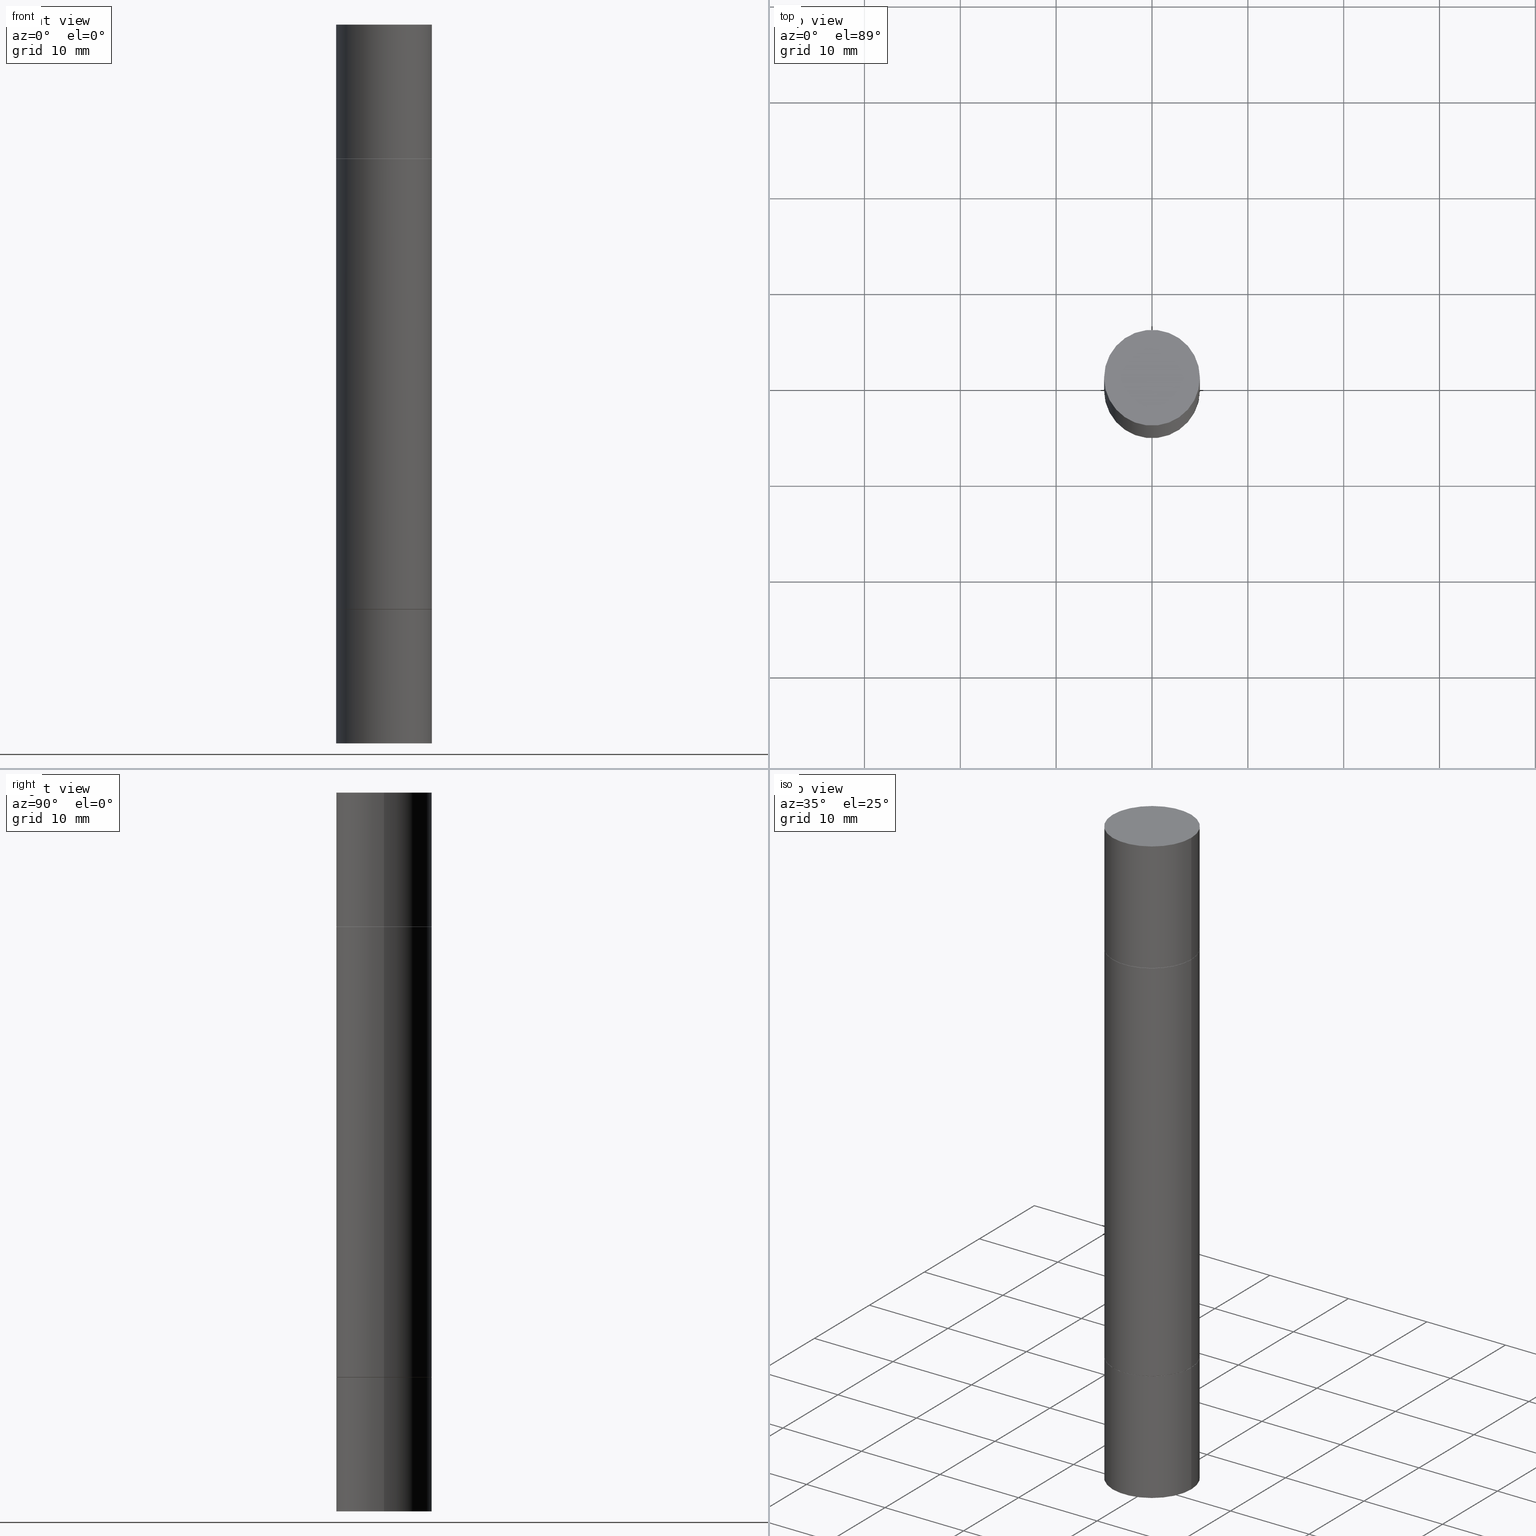
[diagram: canonical four-view strip — front | top / right | iso, engineering-drawing reading convention]
A machine part, canonical four-view strip (front | top / right | iso — engineering-drawing reading convention). The complete STEP part file that produces these views, byte-faithful:
ISO-10303-21;
HEADER;
FILE_DESCRIPTION (( 'STEP AP203' ),
    '1' );
FILE_NAME ('48918.STEP',
    '2024-03-04T15:48:40',
    ( '' ),
    ( '' ),
    'SwSTEP 2.0',
    'SolidWorks 2023',
    '' );
FILE_SCHEMA (( 'CONFIG_CONTROL_DESIGN' ));
ENDSEC;

DATA;
#1 = DIRECTION ( 'NONE',  ( 1.000000000000000000, -6.982962677686265922E-15, 0.000000000000000000 ) ) ;
#2 = VERTEX_POINT ( 'NONE', #113 ) ;
#3 = ORIENTED_EDGE ( 'NONE', *, *, #40, .T. ) ;
#4 = DIRECTION ( 'NONE',  ( -0.000000000000000000, -3.492185875197449130E-15, -1.000000000000000000 ) ) ;
#5 = ORIENTED_EDGE ( 'NONE', *, *, #536, .T. ) ;
#6 = EDGE_LOOP ( 'NONE', ( #625, #351 ) ) ;
#7 = CARTESIAN_POINT ( 'NONE',  ( 5.873037884934223228E-29, -8.385141583365697263E-15, -2.401599999999999735 ) ) ;
#8 = ORIENTED_EDGE ( 'NONE', *, *, #433, .F. ) ;
#9 = CIRCLE ( 'NONE', #400, 0.1958499999999999963 ) ;
#10 = AXIS2_PLACEMENT_3D ( 'NONE', #120, #546, #68 ) ;
#11 = EDGE_CURVE ( 'NONE', #594, #632, #358, .T. ) ;
#12 = CARTESIAN_POINT ( 'NONE',  ( 1.374596203102613789E-15, 0.1968500000000000250, -5.463695987328526437E-16 ) ) ;
#13 = EDGE_LOOP ( 'NONE', ( #312, #315 ) ) ;
#14 = EDGE_CURVE ( 'NONE', #471, #207, #60, .T. ) ;
#15 = DIRECTION ( 'NONE',  ( 0.000000000000000000, 0.000000000000000000, 1.000000000000000000 ) ) ;
#16 = CARTESIAN_POINT ( 'NONE',  ( 1.374596203102600181E-15, 0.1968499999999980543, -0.5512000000000001343 ) ) ;
#17 = PLANE ( 'NONE',  #262 ) ;
#18 = APPROVAL_DATE_TIME ( #551, #177 ) ;
#19 = DIRECTION ( 'NONE',  ( -2.445468806185136597E-29, 3.491481338843145583E-15, 1.000000000000000000 ) ) ;
#20 = ORIENTED_EDGE ( 'NONE', *, *, #557, .F. ) ;
#21 = EDGE_CURVE ( 'NONE', #318, #207, #636, .T. ) ;
#22 = AXIS2_PLACEMENT_3D ( 'NONE', #191, #556, #406 ) ;
#23 = CC_DESIGN_APPROVAL ( #177, ( #568 ) ) ;
#24 = FACE_OUTER_BOUND ( 'NONE', #48, .T. ) ;
#25 = ADVANCED_FACE ( 'NONE', ( #635 ), #343, .T. ) ;
#26 = DIRECTION ( 'NONE',  ( 2.445468806185136597E-29, 3.492890411551752677E-15, 1.000000000000000000 ) ) ;
#27 = CARTESIAN_POINT ( 'NONE',  ( 0.000000000000000000, 0.000000000000000000, 0.000000000000000000 ) ) ;
#28 = CARTESIAN_POINT ( 'NONE',  ( 0.1968500000000000250, -9.759737786468237294E-15, -2.401599999999999735 ) ) ;
#29 = CARTESIAN_POINT ( 'NONE',  ( 0.1968500000000000250, -1.372515848155552113E-15, 5.463695987328526437E-16 ) ) ;
#30 = DIRECTION ( 'NONE',  ( 1.000000000000000000, -6.982962677686268288E-15, 0.000000000000000000 ) ) ;
#31 = AXIS2_PLACEMENT_3D ( 'NONE', #126, #453, #401 ) ;
#32 = ORIENTED_EDGE ( 'NONE', *, *, #158, .T. ) ;
#33 = APPROVAL_STATUS ( 'not_yet_approved' ) ;
#34 = VECTOR ( 'NONE', #273, 39.37007874015748143 ) ;
#35 = CARTESIAN_POINT ( 'NONE',  ( 0.000000000000000000, 0.000000000000000000, 0.000000000000000000 ) ) ;
#36 = DIRECTION ( 'NONE',  ( -2.445468806185136597E-29, -3.492890411551752677E-15, -1.000000000000000000 ) ) ;
#37 = EDGE_LOOP ( 'NONE', ( #522, #547, #172, #438 ) ) ;
#38 = CARTESIAN_POINT ( 'NONE',  ( 1.374596203102613789E-15, 0.1968499999999896999, -2.952800000000000313 ) ) ;
#39 = DIRECTION ( 'NONE',  ( -2.438088387897959769E-29, -3.492890411551753071E-15, -1.000000000000000000 ) ) ;
#40 = EDGE_CURVE ( 'NONE', #230, #390, #435, .T. ) ;
#41 = APPLICATION_PROTOCOL_DEFINITION ( 'international standard', 'config_control_design', 1994, #188 ) ;
#42 = DIRECTION ( 'NONE',  ( -2.445468806185136597E-29, -3.492890411551752677E-15, -1.000000000000000000 ) ) ;
#43 = ADVANCED_FACE ( 'NONE', ( #493 ), #17, .T. ) ;
#44 = CARTESIAN_POINT ( 'NONE',  ( 5.870592416128037625E-29, -1.926693730311889446E-15, -0.5521999999999996911 ) ) ;
#45 = ORIENTED_EDGE ( 'NONE', *, *, #80, .T. ) ;
#46 = DIRECTION ( 'NONE',  ( 1.000000000000000000, -6.982962677686264344E-15, 0.000000000000000000 ) ) ;
#47 = ORIENTED_EDGE ( 'NONE', *, *, #673, .T. ) ;
#48 = EDGE_LOOP ( 'NONE', ( #121, #421 ) ) ;
#49 = CARTESIAN_POINT ( 'NONE',  ( 7.220980290903470182E-29, 2.080354946989631982E-18, 5.463695987328526437E-16 ) ) ;
#50 = AXIS2_PLACEMENT_3D ( 'NONE', #137, #70, #549 ) ;
#51 = ORIENTED_EDGE ( 'NONE', *, *, #334, .F. ) ;
#52 = VECTOR ( 'NONE', #251, 39.37007874015748143 ) ;
#53 = FACE_OUTER_BOUND ( 'NONE', #6, .T. ) ;
#54 = DIRECTION ( 'NONE',  ( 0.000000000000000000, 1.000000000000000000, -4.163344669033678790E-15 ) ) ;
#55 = ORIENTED_EDGE ( 'NONE', *, *, #158, .F. ) ;
#56 = CARTESIAN_POINT ( 'NONE',  ( -0.1968500000000000250, -3.804334017806689102E-15, -2.400599999999999401 ) ) ;
#57 = VERTEX_POINT ( 'NONE', #28 ) ;
#58 = ADVANCED_FACE ( 'NONE', ( #611 ), #512, .F. ) ;
#59 = CARTESIAN_POINT ( 'NONE',  ( 0.1958499999999999963, -9.752754823790552857E-15, -2.401599999999999735 ) ) ;
#60 = LINE ( 'NONE', #326, #477 ) ;
#61 = CIRCLE ( 'NONE', #456, 0.1968500000000000250 ) ;
#62 = EDGE_CURVE ( 'NONE', #2, #230, #510, .T. ) ;
#63 = LOCAL_TIME ( 10, 48, 40.00000000000000000, #451 ) ;
#64 = PRODUCT_DEFINITION_SHAPE ( 'NONE', 'NONE',  #197 ) ;
#65 = CYLINDRICAL_SURFACE ( 'NONE', #185, 0.1968500000000000250 ) ;
#66 = CARTESIAN_POINT ( 'NONE',  ( 5.873037884934223228E-29, -1.923200839900334937E-15, -0.5511999999999992461 ) ) ;
#67 = CC_DESIGN_PERSON_AND_ORGANIZATION_ASSIGNMENT ( #485, #213, ( #229 ) ) ;
#68 = DIRECTION ( 'NONE',  ( 1.000000000000000000, -6.982962677686267499E-15, 0.000000000000000000 ) ) ;
#69 = ORIENTED_EDGE ( 'NONE', *, *, #360, .T. ) ;
#70 = DIRECTION ( 'NONE',  ( -2.445468806185136597E-29, 3.491481338843145583E-15, 1.000000000000000000 ) ) ;
#71 = DIRECTION ( 'NONE',  ( 1.000000000000000000, -6.982962677686268288E-15, 0.000000000000000000 ) ) ;
#72 = AXIS2_PLACEMENT_3D ( 'NONE', #199, #123, #76 ) ;
#73 = VECTOR ( 'NONE', #322, 39.37007874015748143 ) ;
#74 = PERSON_AND_ORGANIZATION ( #146, #530 ) ;
#75 = FACE_OUTER_BOUND ( 'NONE', #327, .T. ) ;
#76 = DIRECTION ( 'NONE',  ( 1.000000000000000000, -6.982962677686267499E-15, 0.000000000000000000 ) ) ;
#77 = CALENDAR_DATE ( 2024, 4, 3 ) ;
#78 = FACE_OUTER_BOUND ( 'NONE', #323, .T. ) ;
#79 = DIRECTION ( 'NONE',  ( 1.000000000000000000, -6.982962677686268288E-15, 0.000000000000000000 ) ) ;
#80 = EDGE_CURVE ( 'NONE', #272, #484, #183, .T. ) ;
#81 = APPROVAL_ROLE ( '' ) ;
#82 = CARTESIAN_POINT ( 'NONE',  ( 5.873037884934223228E-29, -1.923200839900336120E-15, -0.5511999999999995792 ) ) ;
#83 = CARTESIAN_POINT ( 'NONE',  ( 5.870592416128037625E-29, -1.926693730311889446E-15, -0.5521999999999996911 ) ) ;
#84 = CIRCLE ( 'NONE', #444, 0.1968500000000000250 ) ;
#85 = EDGE_LOOP ( 'NONE', ( #496, #367, #413, #539 ) ) ;
#86 = AXIS2_PLACEMENT_3D ( 'NONE', #204, #627, #206 ) ;
#87 = AXIS2_PLACEMENT_3D ( 'NONE', #313, #15, #535 ) ;
#88 = DIRECTION ( 'NONE',  ( -2.445468806185136597E-29, 3.491481338843145583E-15, 1.000000000000000000 ) ) ;
#89 = AXIS2_PLACEMENT_3D ( 'NONE', #550, #407, #79 ) ;
#90 = DIRECTION ( 'NONE',  ( -2.445468806185136597E-29, -3.492890411551752677E-15, -1.000000000000000000 ) ) ;
#91 = ADVANCED_FACE ( 'NONE', ( #463 ), #651, .T. ) ;
#92 = DIRECTION ( 'NONE',  ( -2.445468806185136597E-29, -3.492890411551752677E-15, -1.000000000000000000 ) ) ;
#93 = ADVANCED_FACE ( 'NONE', ( #567 ), #303, .F. ) ;
#94 = CYLINDRICAL_SURFACE ( 'NONE', #105, 0.1968499999999998307 ) ;
#95 = AXIS2_PLACEMENT_3D ( 'NONE', #170, #388, #597 ) ;
#96 = DIRECTION ( 'NONE',  ( 1.000000000000000000, -6.982962677686265922E-15, 9.839502134516470631E-33 ) ) ;
#97 = CC_DESIGN_APPROVAL ( #109, ( #106 ) ) ;
#98 = VERTEX_POINT ( 'NONE', #515 ) ;
#99 = CYLINDRICAL_SURFACE ( 'NONE', #287, 0.1968499999999998307 ) ;
#100 = ORIENTED_EDGE ( 'NONE', *, *, #606, .F. ) ;
#101 = DIRECTION ( 'NONE',  ( 0.7071067811864267805, -7.407546758113824138E-15, -0.7071067811866682540 ) ) ;
#102 = VERTEX_POINT ( 'NONE', #668 ) ;
#103 = AXIS2_PLACEMENT_3D ( 'NONE', #241, #36, #30 ) ;
#104 = DIRECTION ( 'NONE',  ( -2.445468806185136597E-29, -3.492890411551752677E-15, -1.000000000000000000 ) ) ;
#105 = AXIS2_PLACEMENT_3D ( 'NONE', #470, #42, #46 ) ;
#107 = ORIENTED_EDGE ( 'NONE', *, *, #363, .T. ) ;
#106 = PRODUCT_DEFINITION_FORMATION_WITH_SPECIFIED_SOURCE ( 'ANY', '', #229, .NOT_KNOWN. ) ;
#108 = CYLINDRICAL_SURFACE ( 'NONE', #173, 0.1968500000000000250 ) ;
#109 = APPROVAL ( #33, 'UNSPECIFIED' ) ;
#110 = ORIENTED_EDGE ( 'NONE', *, *, #134, .T. ) ;
#111 = EDGE_CURVE ( 'NONE', #270, #390, #386, .T. ) ;
#112 = FACE_OUTER_BOUND ( 'NONE', #13, .T. ) ;
#113 = CARTESIAN_POINT ( 'NONE',  ( -0.1958499999999999963, -5.778885032436711881E-16, -0.5511999999999992461 ) ) ;
#114 = EDGE_LOOP ( 'NONE', ( #624, #370, #3, #110 ) ) ;
#115 = FACE_OUTER_BOUND ( 'NONE', #136, .T. ) ;
#116 = CIRCLE ( 'NONE', #208, 0.1968500000000000250 ) ;
#117 = VERTEX_POINT ( 'NONE', #660 ) ;
#118 = CONICAL_SURFACE ( 'NONE', #184, 0.1958499999999999963, 0.7853981633972775267 ) ;
#119 = PERSON_AND_ORGANIZATION ( #146, #530 ) ;
#120 = CARTESIAN_POINT ( 'NONE',  ( 7.220980290903470182E-29, -1.030964609733603853E-14, -2.952799999999999869 ) ) ;
#121 = ORIENTED_EDGE ( 'NONE', *, *, #416, .T. ) ;
#122 = FACE_OUTER_BOUND ( 'NONE', #223, .T. ) ;
#123 = DIRECTION ( 'NONE',  ( 2.445468806185136597E-29, 3.492890411551752677E-15, 1.000000000000000000 ) ) ;
#124 = PERSON_AND_ORGANIZATION_ROLE ( 'creator' ) ;
#125 = DIRECTION ( 'NONE',  ( 1.000000000000000000, -6.982962677686265922E-15, 4.876176775795935793E-29 ) ) ;
#126 = CARTESIAN_POINT ( 'NONE',  ( 5.870592416128037625E-29, -1.926693730311889446E-15, -0.5521999999999996911 ) ) ;
#127 = AXIS2_PLACEMENT_3D ( 'NONE', #249, #614, #461 ) ;
#128 = COORDINATED_UNIVERSAL_TIME_OFFSET ( 5, 0, .BEHIND. ) ;
#129 = DIRECTION ( 'NONE',  ( 0.000000000000000000, 3.492185875197449524E-15, 1.000000000000000000 ) ) ;
#130 = DIRECTION ( 'NONE',  ( -1.000000000000000000, 6.982962677686265922E-15, -9.839502134516470631E-33 ) ) ;
#131 = ADVANCED_FACE ( 'NONE', ( #608 ), #180, .F. ) ;
#132 = CALENDAR_DATE ( 2024, 4, 3 ) ;
#133 = DIRECTION ( 'NONE',  ( 1.000000000000000000, -6.982962677686262766E-15, 0.000000000000000000 ) ) ;
#134 = EDGE_CURVE ( 'NONE', #390, #270, #354, .T. ) ;
#135 = FACE_OUTER_BOUND ( 'NONE', #598, .T. ) ;
#136 = EDGE_LOOP ( 'NONE', ( #458, #649, #428, #425 ) ) ;
#137 = CARTESIAN_POINT ( 'NONE',  ( 5.870592416128037625E-29, -8.381650102026854256E-15, -2.400599999999999401 ) ) ;
#138 = DIRECTION ( 'NONE',  ( -2.445468806185136597E-29, 3.491481338843145583E-15, 1.000000000000000000 ) ) ;
#139 = AXIS2_PLACEMENT_3D ( 'NONE', #430, #233, #653 ) ;
#140 = ORIENTED_EDGE ( 'NONE', *, *, #533, .F. ) ;
#141 = VECTOR ( 'NONE', #509, 39.37007874015748143 ) ;
#142 = CC_DESIGN_PERSON_AND_ORGANIZATION_ASSIGNMENT ( #119, #124, ( #106 ) ) ;
#143 = CIRCLE ( 'NONE', #638, 0.1968500000000000250 ) ;
#144 = DIRECTION ( 'NONE',  ( 2.445468806185136597E-29, 3.492890411551752677E-15, 1.000000000000000000 ) ) ;
#145 = CARTESIAN_POINT ( 'NONE',  ( 5.873037884934223228E-29, -1.923200839900334937E-15, -0.5511999999999992461 ) ) ;
#146 = PERSON ( 'UNSPECIFIED', 'UNSPECIFIED', 'UNSPECIFIED', ('UNSPECIFIED'), ('UNSPECIFIED'), ('UNSPECIFIED') ) ;
#147 = LINE ( 'NONE', #527, #617 ) ;
#148 = VECTOR ( 'NONE', #659, 39.37007874015748143 ) ;
#149 = DIRECTION ( 'NONE',  ( -2.445468806185136597E-29, -3.492890411551752677E-15, -1.000000000000000000 ) ) ;
#150 = EDGE_LOOP ( 'NONE', ( #20, #140 ) ) ;
#151 = ORIENTED_EDGE ( 'NONE', *, *, #338, .T. ) ;
#152 = CARTESIAN_POINT ( 'NONE',  ( -0.1968499999999998307, -8.961237421421701017E-15, -2.952799999999998981 ) ) ;
#153 = EDGE_LOOP ( 'NONE', ( #357, #592, #32, #215 ) ) ;
#154 = DATE_AND_TIME ( #426, #389 ) ;
#155 = PLANE ( 'NONE',  #476 ) ;
#156 = ORIENTED_EDGE ( 'NONE', *, *, #162, .T. ) ;
#157 = EDGE_LOOP ( 'NONE', ( #615, #526, #525, #640 ) ) ;
#158 = EDGE_CURVE ( 'NONE', #582, #441, #220, .T. ) ;
#159 = PLANE ( 'NONE',  #511 ) ;
#160 = AXIS2_PLACEMENT_3D ( 'NONE', #7, #641, #221 ) ;
#161 = DIRECTION ( 'NONE',  ( -2.445468806185136597E-29, -3.492890411551752677E-15, -1.000000000000000000 ) ) ;
#162 = EDGE_CURVE ( 'NONE', #230, #2, #308, .T. ) ;
#163 = ORIENTED_EDGE ( 'NONE', *, *, #654, .T. ) ;
#164 = LINE ( 'NONE', #486, #34 ) ;
#165 = EDGE_LOOP ( 'NONE', ( #329, #69, #247, #408 ) ) ;
#166 = EDGE_LOOP ( 'NONE', ( #628, #284, #474, #51 ) ) ;
#167 = CARTESIAN_POINT ( 'NONE',  ( -0.1958499999999999963, -6.993543635379541272E-15, -2.401599999999999735 ) ) ;
#168 = ORIENTED_EDGE ( 'NONE', *, *, #557, .T. ) ;
#169 = MANIFOLD_SOLID_BREP ( 'Body-Move/Copy2[1]', #569 ) ;
#170 = CARTESIAN_POINT ( 'NONE',  ( 5.873037884934223228E-29, -8.385141583365697263E-15, -2.401599999999999735 ) ) ;
#171 = AXIS2_PLACEMENT_3D ( 'NONE', #145, #424, #306 ) ;
#172 = ORIENTED_EDGE ( 'NONE', *, *, #514, .T. ) ;
#173 = AXIS2_PLACEMENT_3D ( 'NONE', #224, #104, #335 ) ;
#174 = APPROVAL_PERSON_ORGANIZATION ( #409, #109, #81 ) ;
#175 = AXIS2_PLACEMENT_3D ( 'NONE', #353, #90, #266 ) ;
#176 = LINE ( 'NONE', #292, #141 ) ;
#177 = APPROVAL ( #243, 'UNSPECIFIED' ) ;
#178 = CARTESIAN_POINT ( 'NONE',  ( 3.610490145451734531E-29, -5.154823048668018475E-15, -1.476399999999999491 ) ) ;
#179 = DIRECTION ( 'NONE',  ( 2.445468806185136597E-29, 3.492890411551752677E-15, 1.000000000000000000 ) ) ;
#180 = PLANE ( 'NONE',  #519 ) ;
#181 = EDGE_CURVE ( 'NONE', #534, #98, #9, .T. ) ;
#182 = DIRECTION ( 'NONE',  ( 1.000000000000000000, -6.982962677686265922E-15, 4.876176775795935793E-29 ) ) ;
#183 = LINE ( 'NONE', #501, #52 ) ;
#184 = AXIS2_PLACEMENT_3D ( 'NONE', #228, #490, #593 ) ;
#185 = AXIS2_PLACEMENT_3D ( 'NONE', #373, #495, #481 ) ;
#186 = ORIENTED_EDGE ( 'NONE', *, *, #62, .F. ) ;
#187 = COORDINATED_UNIVERSAL_TIME_OFFSET ( 5, 0, .BEHIND. ) ;
#188 = APPLICATION_CONTEXT ( 'configuration controlled 3d designs of mechanical parts and assemblies' ) ;
#189 = APPROVAL_PERSON_ORGANIZATION ( #439, #391, #644 ) ;
#190 = ADVANCED_FACE ( 'NONE', ( #503 ), #298, .T. ) ;
#191 = CARTESIAN_POINT ( 'NONE',  ( 0.000000000000000000, -1.031172645228302408E-14, -2.952799999999998981 ) ) ;
#192 = CARTESIAN_POINT ( 'NONE',  ( 0.000000000000000000, -1.031172645228302408E-14, -2.952799999999998981 ) ) ;
#193 = EDGE_LOOP ( 'NONE', ( #218, #394, #376, #47 ) ) ;
#194 = DATE_TIME_ROLE ( 'creation_date' ) ;
#195 = DIRECTION ( 'NONE',  ( 1.000000000000000000, -6.982962677686262766E-15, 0.000000000000000000 ) ) ;
#196 = DIRECTION ( 'NONE',  ( 2.445468806185136597E-29, 3.492890411551752677E-15, 1.000000000000000000 ) ) ;
#197 = PRODUCT_DEFINITION ( 'UNKNOWN', '', #106, #467 ) ;
#198 = DIRECTION ( 'NONE',  ( 1.000000000000000000, -6.982962677686267499E-15, 0.000000000000000000 ) ) ;
#199 = CARTESIAN_POINT ( 'NONE',  ( 5.873037884934223228E-29, -1.923200839900336120E-15, -0.5511999999999995792 ) ) ;
#200 = AXIS2_PLACEMENT_3D ( 'NONE', #419, #478, #677 ) ;
#201 =( NAMED_UNIT ( * ) SI_UNIT ( $, .STERADIAN. ) SOLID_ANGLE_UNIT ( ) );
#202 = CARTESIAN_POINT ( 'NONE',  ( 5.870592416128037625E-29, -8.381650102026854256E-15, -2.400599999999999401 ) ) ;
#203 =( LENGTH_UNIT ( ) NAMED_UNIT ( * ) SI_UNIT ( $, .METRE. ) );
#204 = CARTESIAN_POINT ( 'NONE',  ( 7.220980290903470182E-29, 2.080354946989631982E-18, 5.463695987328526437E-16 ) ) ;
#205 = EDGE_CURVE ( 'NONE', #484, #117, #116, .T. ) ;
#206 = DIRECTION ( 'NONE',  ( 1.000000000000000000, -6.982962677686265922E-15, 0.000000000000000000 ) ) ;
#207 = VERTEX_POINT ( 'NONE', #344 ) ;
#208 = AXIS2_PLACEMENT_3D ( 'NONE', #457, #196, #347 ) ;
#209 = VECTOR ( 'NONE', #101, 39.37007874015748143 ) ;
#210 = CARTESIAN_POINT ( 'NONE',  ( -0.1968500000000000250, -5.762046994505618475E-16, -0.5521999999999996911 ) ) ;
#211 = ORIENTED_EDGE ( 'NONE', *, *, #14, .F. ) ;
#212 = EDGE_LOOP ( 'NONE', ( #219, #479, #258, #211 ) ) ;
#213 = PERSON_AND_ORGANIZATION_ROLE ( 'design_owner' ) ;
#214 = CARTESIAN_POINT ( 'NONE',  ( 3.610490145451734531E-29, -5.154823048668018475E-15, -1.476399999999999491 ) ) ;
#215 = ORIENTED_EDGE ( 'NONE', *, *, #464, .F. ) ;
#216 = ADVANCED_FACE ( 'NONE', ( #558 ), #375, .T. ) ;
#217 = CARTESIAN_POINT ( 'NONE',  ( -0.1968499999999998307, -8.961237421421701017E-15, -2.952799999999998981 ) ) ;
#218 = ORIENTED_EDGE ( 'NONE', *, *, #259, .F. ) ;
#219 = ORIENTED_EDGE ( 'NONE', *, *, #454, .F. ) ;
#220 = CIRCLE ( 'NONE', #72, 0.1968500000000000250 ) ;
#221 = DIRECTION ( 'NONE',  ( 1.000000000000000000, -6.982962677686262766E-15, 0.000000000000000000 ) ) ;
#222 = CIRCLE ( 'NONE', #50, 0.1968500000000000250 ) ;
#223 = EDGE_LOOP ( 'NONE', ( #168, #612, #100, #447 ) ) ;
#224 = CARTESIAN_POINT ( 'NONE',  ( 0.000000000000000000, -1.031172645228302408E-14, -2.952799999999998981 ) ) ;
#225 = ORIENTED_EDGE ( 'NONE', *, *, #111, .T. ) ;
#226 = MECHANICAL_CONTEXT ( 'NONE', #188, 'mechanical' ) ;
#227 = ADVANCED_FACE ( 'NONE', ( #135 ), #349, .T. ) ;
#228 = CARTESIAN_POINT ( 'NONE',  ( 5.873037884934223228E-29, -1.923200839900334937E-15, -0.5511999999999992461 ) ) ;
#229 = PRODUCT ( '48918', '48918', '', ( #226 ) ) ;
#230 = VERTEX_POINT ( 'NONE', #364 ) ;
#231 = DIRECTION ( 'NONE',  ( -2.445468806185136597E-29, 3.491481338843145583E-15, 1.000000000000000000 ) ) ;
#232 = AXIS2_PLACEMENT_3D ( 'NONE', #663, #138, #288 ) ;
#233 = DIRECTION ( 'NONE',  ( 2.445468806185136597E-29, 3.492890411551752677E-15, 1.000000000000000000 ) ) ;
#234 = AXIS2_PLACEMENT_3D ( 'NONE', #666, #129, #657 ) ;
#235 = AXIS2_PLACEMENT_3D ( 'NONE', #192, #667, #605 ) ;
#236 = LINE ( 'NONE', #302, #148 ) ;
#237 = DIRECTION ( 'NONE',  ( 2.445468806185136597E-29, 3.492890411551752677E-15, 1.000000000000000000 ) ) ;
#238 = CC_DESIGN_DATE_AND_TIME_ASSIGNMENT ( #665, #194, ( #197 ) ) ;
#239 = PERSON_AND_ORGANIZATION_ROLE ( 'design_supplier' ) ;
#240 = PLANE ( 'NONE',  #402 ) ;
#241 = CARTESIAN_POINT ( 'NONE',  ( 5.873037884934223228E-29, -1.923200839900334937E-15, -0.5511999999999992461 ) ) ;
#242 = ADVANCED_FACE ( 'NONE', ( #314 ), #620, .F. ) ;
#243 = APPROVAL_STATUS ( 'not_yet_approved' ) ;
#244 = CARTESIAN_POINT ( 'NONE',  ( -0.1968500000000000250, 3.899287883846532010E-16, -0.5511999999999995792 ) ) ;
#245 = DIRECTION ( 'NONE',  ( -1.000000000000000000, 6.982962677686265922E-15, -4.876176775795935793E-29 ) ) ;
#246 = CIRCLE ( 'NONE', #423, 0.1968500000000000250 ) ;
#247 = ORIENTED_EDGE ( 'NONE', *, *, #563, .T. ) ;
#248 = DIRECTION ( 'NONE',  ( 1.000000000000000000, -6.982962677686268288E-15, 0.000000000000000000 ) ) ;
#249 = CARTESIAN_POINT ( 'NONE',  ( 5.873037884934223228E-29, -1.923200839900334937E-15, -0.5511999999999992461 ) ) ;
#250 = ORIENTED_EDGE ( 'NONE', *, *, #11, .T. ) ;
#251 = DIRECTION ( 'NONE',  ( -2.445468806185136877E-29, -3.492890411551753071E-15, -1.000000000000000000 ) ) ;
#252 = CARTESIAN_POINT ( 'NONE',  ( -0.1968499999999998307, -2.190269358628626559E-15, -1.476399999999999491 ) ) ;
#253 = CLOSED_SHELL ( 'NONE', ( #642, #405, #459, #227 ) ) ;
#254 = CIRCLE ( 'NONE', #95, 0.1958499999999999963 ) ;
#255 = CARTESIAN_POINT ( 'NONE',  ( 0.1958499999999999963, -3.290814080325190531E-15, -0.5511999999999992461 ) ) ;
#256 = EDGE_CURVE ( 'NONE', #579, #117, #147, .T. ) ;
#257 = DIRECTION ( 'NONE',  ( 1.000000000000000000, -6.982962677686267499E-15, 0.000000000000000000 ) ) ;
#258 = ORIENTED_EDGE ( 'NONE', *, *, #416, .F. ) ;
#259 = EDGE_CURVE ( 'NONE', #594, #582, #317, .T. ) ;
#260 = CYLINDRICAL_SURFACE ( 'NONE', #300, 0.1968499999999998307 ) ;
#261 = EDGE_LOOP ( 'NONE', ( #541, #513 ) ) ;
#262 = AXIS2_PLACEMENT_3D ( 'NONE', #38, #658, #450 ) ;
#263 = ORIENTED_EDGE ( 'NONE', *, *, #603, .F. ) ;
#264 = APPROVAL_STATUS ( 'not_yet_approved' ) ;
#265 = VECTOR ( 'NONE', #544, 39.37007874015748143 ) ;
#266 = DIRECTION ( 'NONE',  ( 1.000000000000000000, -6.982962677686267499E-15, 0.000000000000000000 ) ) ;
#267 = CLOSED_SHELL ( 'NONE', ( #381, #91, #629, #242, #25, #190 ) ) ;
#268 = ADVANCED_FACE ( 'NONE', ( #616 ), #475, .T. ) ;
#269 = ORIENTED_EDGE ( 'NONE', *, *, #360, .F. ) ;
#270 = VERTEX_POINT ( 'NONE', #210 ) ;
#271 = LINE ( 'NONE', #217, #331 ) ;
#272 = VERTEX_POINT ( 'NONE', #572 ) ;
#273 = DIRECTION ( 'NONE',  ( -2.445468806185136877E-29, 3.491481338843145188E-15, 1.000000000000000000 ) ) ;
#274 = ORIENTED_EDGE ( 'NONE', *, *, #673, .F. ) ;
#275 = CIRCLE ( 'NONE', #489, 0.1968499999999998307 ) ;
#276 = FACE_OUTER_BOUND ( 'NONE', #301, .T. ) ;
#277 = CC_DESIGN_APPROVAL ( #391, ( #197 ) ) ;
#279 = ORIENTED_EDGE ( 'NONE', *, *, #334, .T. ) ;
#278 = LOCAL_TIME ( 10, 48, 40.00000000000000000, #337 ) ;
#280 = LINE ( 'NONE', #589, #661 ) ;
#281 = DIRECTION ( 'NONE',  ( 0.7071067811864267805, -7.407546758113824138E-15, -0.7071067811866682540 ) ) ;
#282 = DATE_AND_TIME ( #132, #278 ) ;
#283 = DIRECTION ( 'NONE',  ( 2.445468806185136597E-29, 3.492890411551752677E-15, 1.000000000000000000 ) ) ;
#284 = ORIENTED_EDGE ( 'NONE', *, *, #433, .T. ) ;
#285 = SECURITY_CLASSIFICATION_LEVEL ( 'unclassified' ) ;
#286 = CYLINDRICAL_SURFACE ( 'NONE', #309, 0.1968500000000000250 ) ;
#287 = AXIS2_PLACEMENT_3D ( 'NONE', #469, #149, #672 ) ;
#288 = DIRECTION ( 'NONE',  ( 1.000000000000000000, -6.982962677686262766E-15, 0.000000000000000000 ) ) ;
#289 = AXIS2_PLACEMENT_3D ( 'NONE', #591, #429, #437 ) ;
#290 = EDGE_CURVE ( 'NONE', #385, #102, #84, .T. ) ;
#291 = CC_DESIGN_SECURITY_CLASSIFICATION ( #568, ( #106 ) ) ;
#292 = CARTESIAN_POINT ( 'NONE',  ( 0.1968500000000000250, -1.374596203102541608E-15, 9.598753983154300858E-30 ) ) ;
#293 = DIRECTION ( 'NONE',  ( 2.445468806185136597E-29, 3.492890411551752677E-15, 1.000000000000000000 ) ) ;
#294 = CARTESIAN_POINT ( 'NONE',  ( 5.873037884934223228E-29, -8.385141583365697263E-15, -2.401599999999999735 ) ) ;
#295 = DIRECTION ( 'NONE',  ( 1.000000000000000000, -6.982962677686267499E-15, 0.000000000000000000 ) ) ;
#296 = ORIENTED_EDGE ( 'NONE', *, *, #111, .F. ) ;
#297 = CARTESIAN_POINT ( 'NONE',  ( -0.1968500000000000250, 3.899287883846529545E-16, 5.463695987328561936E-16 ) ) ;
#298 = CYLINDRICAL_SURFACE ( 'NONE', #235, 0.1968499999999998307 ) ;
#299 = VECTOR ( 'NONE', #281, 39.37007874015748143 ) ;
#300 = AXIS2_PLACEMENT_3D ( 'NONE', #571, #92, #304 ) ;
#301 = EDGE_LOOP ( 'NONE', ( #186, #528, #225, #590 ) ) ;
#302 = CARTESIAN_POINT ( 'NONE',  ( 0.1968499999999998307, -1.168632265538556411E-14, -2.952799999999998981 ) ) ;
#303 = PLANE ( 'NONE',  #127 ) ;
#304 = DIRECTION ( 'NONE',  ( 1.000000000000000000, -6.982962677686264344E-15, 0.000000000000000000 ) ) ;
#305 = UNCERTAINTY_MEASURE_WITH_UNIT (LENGTH_MEASURE( 1.000000000000000082E-05 ), #468, 'distance_accuracy_value', 'NONE');
#306 = DIRECTION ( 'NONE',  ( 1.000000000000000000, -6.982962677686268288E-15, 0.000000000000000000 ) ) ;
#307 = ADVANCED_FACE ( 'NONE', ( #418 ), #99, .T. ) ;
#308 = CIRCLE ( 'NONE', #497, 0.1958499999999999963 ) ;
#309 = AXIS2_PLACEMENT_3D ( 'NONE', #27, #88, #393 ) ;
#310 = DIRECTION ( 'NONE',  ( -2.445468806185136597E-29, 3.491481338843145583E-15, 1.000000000000000000 ) ) ;
#311 = EDGE_CURVE ( 'NONE', #2, #270, #473, .T. ) ;
#312 = ORIENTED_EDGE ( 'NONE', *, *, #205, .F. ) ;
#313 = CARTESIAN_POINT ( 'NONE',  ( 0.000000000000000000, 0.000000000000000000, 0.000000000000000000 ) ) ;
#314 = FACE_OUTER_BOUND ( 'NONE', #261, .T. ) ;
#315 = ORIENTED_EDGE ( 'NONE', *, *, #514, .F. ) ;
#316 = EDGE_CURVE ( 'NONE', #272, #579, #387, .T. ) ;
#317 = LINE ( 'NONE', #670, #676 ) ;
#318 = VERTEX_POINT ( 'NONE', #252 ) ;
#319 = AXIS2_PLACEMENT_3D ( 'NONE', #66, #161, #379 ) ;
#320 = CIRCLE ( 'NONE', #321, 0.1968500000000000250 ) ;
#321 = AXIS2_PLACEMENT_3D ( 'NONE', #294, #505, #133 ) ;
#322 = DIRECTION ( 'NONE',  ( -0.7071067811864267805, 2.381258160590016583E-15, -0.7071067811866682540 ) ) ;
#323 = EDGE_LOOP ( 'NONE', ( #480, #269 ) ) ;
#324 = ORIENTED_EDGE ( 'NONE', *, *, #134, .F. ) ;
#325 = CARTESIAN_POINT ( 'NONE',  ( 0.1968500000000000250, -3.301289933414429871E-15, -0.5521999999999996911 ) ) ;
#326 = CARTESIAN_POINT ( 'NONE',  ( 0.1968499999999998307, -1.168632265538556411E-14, -2.952799999999998981 ) ) ;
#327 = EDGE_LOOP ( 'NONE', ( #336, #250 ) ) ;
#328 = CARTESIAN_POINT ( 'NONE',  ( -0.1958499999999999963, -5.795723070367805287E-16, -0.5511999999999992461 ) ) ;
#329 = ORIENTED_EDGE ( 'NONE', *, *, #507, .F. ) ;
#330 = ADVANCED_FACE ( 'NONE', ( #518 ), #94, .T. ) ;
#331 = VECTOR ( 'NONE', #634, 39.37007874015748143 ) ;
#332 = FACE_OUTER_BOUND ( 'NONE', #193, .T. ) ;
#333 = DIRECTION ( 'NONE',  ( -0.000000000000000000, -3.492185875197449130E-15, -1.000000000000000000 ) ) ;
#334 = EDGE_CURVE ( 'NONE', #98, #471, #369, .T. ) ;
#335 = DIRECTION ( 'NONE',  ( 1.000000000000000000, -6.982962677686267499E-15, 0.000000000000000000 ) ) ;
#336 = ORIENTED_EDGE ( 'NONE', *, *, #350, .T. ) ;
#337 = COORDINATED_UNIVERSAL_TIME_OFFSET ( 5, 0, .BEHIND. ) ;
#338 = EDGE_CURVE ( 'NONE', #471, #570, #61, .T. ) ;
#339 = CARTESIAN_POINT ( 'NONE',  ( 1.374596203102613789E-15, 0.1968500000000000250, -5.463695987328526437E-16 ) ) ;
#340 = CARTESIAN_POINT ( 'NONE',  ( 5.873037884934223228E-29, -1.923200839900334937E-15, -0.5511999999999992461 ) ) ;
#341 = PERSON_AND_ORGANIZATION ( #146, #530 ) ;
#342 = DIRECTION ( 'NONE',  ( 1.000000000000000000, -6.982962677686267499E-15, 0.000000000000000000 ) ) ;
#343 = CONICAL_SURFACE ( 'NONE', #319, 0.1958499999999999963, 0.7853981633972775267 ) ;
#344 = CARTESIAN_POINT ( 'NONE',  ( 0.1968499999999998307, -4.915354592592491624E-15, -1.476399999999999491 ) ) ;
#345 = VECTOR ( 'NONE', #613, 39.37007874015748143 ) ;
#346 = CYLINDRICAL_SURFACE ( 'NONE', #22, 0.1968500000000000250 ) ;
#347 = DIRECTION ( 'NONE',  ( 1.000000000000000000, -6.982962677686267499E-15, 0.000000000000000000 ) ) ;
#348 = CARTESIAN_POINT ( 'NONE',  ( -0.1968500000000000250, -7.948690465007109319E-15, -2.952799999999999869 ) ) ;
#349 = CYLINDRICAL_SURFACE ( 'NONE', #175, 0.1968500000000000250 ) ;
#350 = EDGE_CURVE ( 'NONE', #632, #594, #356, .T. ) ;
#351 = ORIENTED_EDGE ( 'NONE', *, *, #362, .T. ) ;
#352 = CARTESIAN_POINT ( 'NONE',  ( 5.873037884934223228E-29, -8.385141583365697263E-15, -2.401599999999999735 ) ) ;
#353 = CARTESIAN_POINT ( 'NONE',  ( 0.000000000000000000, -1.031172645228302408E-14, -2.952799999999998981 ) ) ;
#354 = CIRCLE ( 'NONE', #448, 0.1968500000000000250 ) ;
#355 = PRODUCT_RELATED_PRODUCT_CATEGORY ( 'detail', '', ( #229 ) ) ;
#356 = CIRCLE ( 'NONE', #86, 0.1968500000000000250 ) ;
#357 = ORIENTED_EDGE ( 'NONE', *, *, #11, .F. ) ;
#358 = CIRCLE ( 'NONE', #139, 0.1968500000000000250 ) ;
#359 = FACE_OUTER_BOUND ( 'NONE', #212, .T. ) ;
#360 = EDGE_CURVE ( 'NONE', #392, #491, #678, .T. ) ;
#361 = CARTESIAN_POINT ( 'NONE',  ( -0.1958499999999999963, -5.795723070367805287E-16, -0.5511999999999992461 ) ) ;
#362 = EDGE_CURVE ( 'NONE', #579, #272, #520, .T. ) ;
#363 = EDGE_CURVE ( 'NONE', #270, #385, #420, .T. ) ;
#364 = CARTESIAN_POINT ( 'NONE',  ( 0.1958499999999999963, -3.290814080325190531E-15, -0.5511999999999992461 ) ) ;
#365 = LOCAL_TIME ( 10, 48, 40.00000000000000000, #128 ) ;
#366 = CARTESIAN_POINT ( 'NONE',  ( 0.1968500000000000250, -1.168424230043858014E-14, -2.952799999999999869 ) ) ;
#367 = ORIENTED_EDGE ( 'NONE', *, *, #533, .T. ) ;
#368 = VERTEX_POINT ( 'NONE', #366 ) ;
#369 = LINE ( 'NONE', #255, #209 ) ;
#370 = ORIENTED_EDGE ( 'NONE', *, *, #162, .F. ) ;
#371 = ORIENTED_EDGE ( 'NONE', *, *, #316, .F. ) ;
#372 = APPROVAL_DATE_TIME ( #154, #391 ) ;
#373 = CARTESIAN_POINT ( 'NONE',  ( 0.000000000000000000, -1.031172645228302408E-14, -2.952799999999998981 ) ) ;
#374 = EDGE_LOOP ( 'NONE', ( #156, #462 ) ) ;
#375 = CONICAL_SURFACE ( 'NONE', #232, 0.1958499999999999963, 0.7853981633972775267 ) ;
#376 = ORIENTED_EDGE ( 'NONE', *, *, #464, .T. ) ;
#377 = CONICAL_SURFACE ( 'NONE', #160, 0.1958499999999999963, 0.7853981633972775267 ) ;
#378 = CARTESIAN_POINT ( 'NONE',  ( 0.1968500000000000250, -3.297797043002877729E-15, -0.5511999999999995792 ) ) ;
#379 = DIRECTION ( 'NONE',  ( 1.000000000000000000, -6.982962677686268288E-15, 0.000000000000000000 ) ) ;
#380 = DIRECTION ( 'NONE',  ( 2.438088387897959769E-29, 3.492890411551753071E-15, 1.000000000000000000 ) ) ;
#381 = ADVANCED_FACE ( 'NONE', ( #359 ), #260, .T. ) ;
#382 = ORIENTED_EDGE ( 'NONE', *, *, #606, .T. ) ;
#383 = ADVANCED_FACE ( 'NONE', ( #516 ), #65, .T. ) ;
#384 = DIRECTION ( 'NONE',  ( -1.000000000000000000, 6.982962677686265922E-15, -9.839502134516470631E-33 ) ) ;
#385 = VERTEX_POINT ( 'NONE', #56 ) ;
#386 = CIRCLE ( 'NONE', #31, 0.1968500000000000250 ) ;
#387 = CIRCLE ( 'NONE', #595, 0.1968500000000000250 ) ;
#388 = DIRECTION ( 'NONE',  ( -2.445468806185136597E-29, 3.491481338843145583E-15, 1.000000000000000000 ) ) ;
#389 = LOCAL_TIME ( 10, 48, 40.00000000000000000, #596 ) ;
#390 = VERTEX_POINT ( 'NONE', #532 ) ;
#391 = APPROVAL ( #264, 'UNSPECIFIED' ) ;
#392 = VERTEX_POINT ( 'NONE', #427 ) ;
#393 = DIRECTION ( 'NONE',  ( 1.000000000000000000, -6.982962677686265922E-15, 4.876176775795935793E-29 ) ) ;
#394 = ORIENTED_EDGE ( 'NONE', *, *, #350, .F. ) ;
#395 = PERSON_AND_ORGANIZATION_ROLE ( 'creator' ) ;
#396 = FACE_OUTER_BOUND ( 'NONE', #37, .T. ) ;
#397 = DIRECTION ( 'NONE',  ( 1.000000000000000000, -6.982962677686268288E-15, 0.000000000000000000 ) ) ;
#398 = APPROVAL_ROLE ( '' ) ;
#399 = CARTESIAN_POINT ( 'NONE',  ( 5.873037884934223228E-29, -1.923200839900334937E-15, -0.5511999999999992461 ) ) ;
#400 = AXIS2_PLACEMENT_3D ( 'NONE', #340, #293, #71 ) ;
#401 = DIRECTION ( 'NONE',  ( 1.000000000000000000, -6.982962677686267499E-15, 0.000000000000000000 ) ) ;
#402 = AXIS2_PLACEMENT_3D ( 'NONE', #339, #452, #410 ) ;
#403 = ADVANCED_BREP_SHAPE_REPRESENTATION ( '48918', ( #169, #404, #417, #626, #412, #87 ), #543 ) ;
#404 = MANIFOLD_SOLID_BREP ( 'Mirror1[1]', #267 ) ;
#405 = ADVANCED_FACE ( 'NONE', ( #53 ), #155, .T. ) ;
#406 = DIRECTION ( 'NONE',  ( 1.000000000000000000, -6.982962677686267499E-15, 0.000000000000000000 ) ) ;
#407 = DIRECTION ( 'NONE',  ( 2.445468806185136597E-29, 3.492890411551752677E-15, 1.000000000000000000 ) ) ;
#408 = ORIENTED_EDGE ( 'NONE', *, *, #290, .F. ) ;
#409 = PERSON_AND_ORGANIZATION ( #146, #530 ) ;
#410 = DIRECTION ( 'NONE',  ( -1.000000000000000000, 6.982962677686265922E-15, -9.839502134516470631E-33 ) ) ;
#411 = CARTESIAN_POINT ( 'NONE',  ( 1.374596203102600181E-15, 0.1968499999999980543, -0.5512000000000001343 ) ) ;
#412 = MANIFOLD_SOLID_BREP ( 'Combine1', #565 ) ;
#413 = ORIENTED_EDGE ( 'NONE', *, *, #583, .T. ) ;
#414 = DIRECTION ( 'NONE',  ( 2.445468806185136597E-29, 3.492890411551752677E-15, 1.000000000000000000 ) ) ;
#415 = AXIS2_PLACEMENT_3D ( 'NONE', #178, #333, #54 ) ;
#416 = EDGE_CURVE ( 'NONE', #207, #318, #275, .T. ) ;
#417 = MANIFOLD_SOLID_BREP ( 'Mirror1[3]', #422 ) ;
#418 = FACE_OUTER_BOUND ( 'NONE', #482, .T. ) ;
#419 = CARTESIAN_POINT ( 'NONE',  ( 5.873037884934223228E-29, -8.385141583365697263E-15, -2.401599999999999735 ) ) ;
#420 = LINE ( 'NONE', #152, #669 ) ;
#421 = ORIENTED_EDGE ( 'NONE', *, *, #21, .T. ) ;
#422 = CLOSED_SHELL ( 'NONE', ( #383, #575, #58, #436 ) ) ;
#423 = AXIS2_PLACEMENT_3D ( 'NONE', #449, #231, #342 ) ;
#424 = DIRECTION ( 'NONE',  ( -2.445468806185136597E-29, -3.492890411551752677E-15, -1.000000000000000000 ) ) ;
#425 = ORIENTED_EDGE ( 'NONE', *, *, #563, .F. ) ;
#426 = CALENDAR_DATE ( 2024, 4, 3 ) ;
#427 = CARTESIAN_POINT ( 'NONE',  ( -0.1958499999999999963, -6.988245181031318870E-15, -2.401599999999999735 ) ) ;
#428 = ORIENTED_EDGE ( 'NONE', *, *, #536, .F. ) ;
#429 = DIRECTION ( 'NONE',  ( 2.445468806185136597E-29, 3.492890411551752677E-15, 1.000000000000000000 ) ) ;
#430 = CARTESIAN_POINT ( 'NONE',  ( 7.220980290903470182E-29, 2.080354946989631982E-18, 5.463695987328526437E-16 ) ) ;
#431 = AXIS2_PLACEMENT_3D ( 'NONE', #411, #601, #130 ) ;
#432 = AXIS2_PLACEMENT_3D ( 'NONE', #560, #19, #195 ) ;
#433 = EDGE_CURVE ( 'NONE', #534, #570, #631, .T. ) ;
#434 = DIRECTION ( 'NONE',  ( 0.000000000000000000, 1.000000000000000000, -4.163344669033678790E-15 ) ) ;
#435 = LINE ( 'NONE', #545, #299 ) ;
#436 = ADVANCED_FACE ( 'NONE', ( #332 ), #108, .T. ) ;
#437 = DIRECTION ( 'NONE',  ( 1.000000000000000000, -6.982962677686267499E-15, 0.000000000000000000 ) ) ;
#438 = ORIENTED_EDGE ( 'NONE', *, *, #80, .F. ) ;
#439 = PERSON_AND_ORGANIZATION ( #146, #530 ) ;
#440 = CARTESIAN_POINT ( 'NONE',  ( 5.873037884934223228E-29, -1.923200839900336120E-15, -0.5511999999999995792 ) ) ;
#441 = VERTEX_POINT ( 'NONE', #378 ) ;
#442 = EDGE_CURVE ( 'NONE', #570, #318, #271, .T. ) ;
#443 = CALENDAR_DATE ( 2024, 4, 3 ) ;
#444 = AXIS2_PLACEMENT_3D ( 'NONE', #202, #310, #466 ) ;
#445 = AXIS2_PLACEMENT_3D ( 'NONE', #352, #662, #125 ) ;
#446 = CARTESIAN_POINT ( 'NONE',  ( -0.1958499999999999963, -5.778885032436711881E-16, -0.5511999999999992461 ) ) ;
#447 = ORIENTED_EDGE ( 'NONE', *, *, #583, .F. ) ;
#448 = AXIS2_PLACEMENT_3D ( 'NONE', #83, #237, #295 ) ;
#449 = CARTESIAN_POINT ( 'NONE',  ( 7.220980290903470182E-29, -1.030964609733603853E-14, -2.952799999999999869 ) ) ;
#450 = DIRECTION ( 'NONE',  ( -1.000000000000000000, 6.982962677686265922E-15, -4.876176775795935793E-29 ) ) ;
#451 = COORDINATED_UNIVERSAL_TIME_OFFSET ( 5, 0, .BEHIND. ) ;
#452 = DIRECTION ( 'NONE',  ( 2.438088387897959769E-29, 3.492890411551753071E-15, 1.000000000000000000 ) ) ;
#453 = DIRECTION ( 'NONE',  ( 2.445468806185136597E-29, 3.492890411551752677E-15, 1.000000000000000000 ) ) ;
#454 = EDGE_CURVE ( 'NONE', #570, #471, #498, .T. ) ;
#455 = LINE ( 'NONE', #604, #345 ) ;
#456 = AXIS2_PLACEMENT_3D ( 'NONE', #44, #581, #257 ) ;
#457 = CARTESIAN_POINT ( 'NONE',  ( 5.873037884934223228E-29, -1.923200839900336120E-15, -0.5511999999999995792 ) ) ;
#458 = ORIENTED_EDGE ( 'NONE', *, *, #523, .T. ) ;
#459 = ADVANCED_FACE ( 'NONE', ( #112 ), #159, .F. ) ;
#460 = DIRECTION ( 'NONE',  ( 2.445468806185136597E-29, 3.492890411551752677E-15, 1.000000000000000000 ) ) ;
#461 = DIRECTION ( 'NONE',  ( 1.000000000000000000, -6.982962677686265922E-15, 9.839502134516470631E-33 ) ) ;
#462 = ORIENTED_EDGE ( 'NONE', *, *, #62, .T. ) ;
#463 = FACE_OUTER_BOUND ( 'NONE', #166, .T. ) ;
#464 = EDGE_CURVE ( 'NONE', #632, #441, #280, .T. ) ;
#465 =( NAMED_UNIT ( * ) PLANE_ANGLE_UNIT ( ) SI_UNIT ( $, .RADIAN. ) );
#466 = DIRECTION ( 'NONE',  ( 1.000000000000000000, -6.982962677686262766E-15, 0.000000000000000000 ) ) ;
#467 = DESIGN_CONTEXT ( 'detailed design', #517, 'design' ) ;
#468 =( CONVERSION_BASED_UNIT ( 'INCH', #576 ) LENGTH_UNIT ( ) NAMED_UNIT ( #630 ) );
#469 = CARTESIAN_POINT ( 'NONE',  ( 0.000000000000000000, -1.031172645228302408E-14, -2.952799999999998981 ) ) ;
#470 = CARTESIAN_POINT ( 'NONE',  ( 0.000000000000000000, -1.031172645228302408E-14, -2.952799999999998981 ) ) ;
#471 = VERTEX_POINT ( 'NONE', #325 ) ;
#472 = EDGE_CURVE ( 'NONE', #585, #580, #164, .T. ) ;
#473 = LINE ( 'NONE', #361, #586 ) ;
#474 = ORIENTED_EDGE ( 'NONE', *, *, #454, .T. ) ;
#475 = CONICAL_SURFACE ( 'NONE', #171, 0.1958499999999999963, 0.7853981633972775267 ) ;
#476 = AXIS2_PLACEMENT_3D ( 'NONE', #12, #380, #584 ) ;
#477 = VECTOR ( 'NONE', #538, 39.37007874015748143 ) ;
#478 = DIRECTION ( 'NONE',  ( -2.445468806185136597E-29, 3.491481338843145583E-15, 1.000000000000000000 ) ) ;
#479 = ORIENTED_EDGE ( 'NONE', *, *, #442, .T. ) ;
#480 = ORIENTED_EDGE ( 'NONE', *, *, #523, .F. ) ;
#481 = DIRECTION ( 'NONE',  ( 1.000000000000000000, -6.982962677686267499E-15, 0.000000000000000000 ) ) ;
#482 = EDGE_LOOP ( 'NONE', ( #296, #107, #588, #263 ) ) ;
#483 = CC_DESIGN_PERSON_AND_ORGANIZATION_ASSIGNMENT ( #559, #395, ( #197 ) ) ;
#484 = VERTEX_POINT ( 'NONE', #540 ) ;
#485 = PERSON_AND_ORGANIZATION ( #146, #530 ) ;
#486 = CARTESIAN_POINT ( 'NONE',  ( -0.1968500000000000250, 1.398703375343757393E-15, -9.682923725166783677E-30 ) ) ;
#487 = EDGE_LOOP ( 'NONE', ( #382, #163 ) ) ;
#488 = ADVANCED_FACE ( 'NONE', ( #115 ), #377, .T. ) ;
#489 = AXIS2_PLACEMENT_3D ( 'NONE', #214, #4, #434 ) ;
#490 = DIRECTION ( 'NONE',  ( -2.445468806185136597E-29, -3.492890411551752677E-15, -1.000000000000000000 ) ) ;
#491 = VERTEX_POINT ( 'NONE', #59 ) ;
#492 = LINE ( 'NONE', #167, #265 ) ;
#493 = FACE_OUTER_BOUND ( 'NONE', #150, .T. ) ;
#494 = SHAPE_DEFINITION_REPRESENTATION ( #64, #403 ) ;
#495 = DIRECTION ( 'NONE',  ( -2.445468806185136597E-29, -3.492890411551752677E-15, -1.000000000000000000 ) ) ;
#496 = ORIENTED_EDGE ( 'NONE', *, *, #472, .F. ) ;
#497 = AXIS2_PLACEMENT_3D ( 'NONE', #561, #26, #397 ) ;
#498 = CIRCLE ( 'NONE', #289, 0.1968500000000000250 ) ;
#499 = DIRECTION ( 'NONE',  ( -2.445468806185136597E-29, 3.491481338843145583E-15, 1.000000000000000000 ) ) ;
#500 = LOCAL_TIME ( 10, 48, 40.00000000000000000, #187 ) ;
#501 = CARTESIAN_POINT ( 'NONE',  ( 0.1968500000000000250, -1.168632265538556569E-14, -2.952799999999998981 ) ) ;
#502 = FACE_OUTER_BOUND ( 'NONE', #85, .T. ) ;
#503 = FACE_OUTER_BOUND ( 'NONE', #157, .T. ) ;
#504 = ADVANCED_FACE ( 'NONE', ( #276 ), #118, .T. ) ;
#505 = DIRECTION ( 'NONE',  ( -2.445468806185136597E-29, 3.491481338843145583E-15, 1.000000000000000000 ) ) ;
#506 = DIRECTION ( 'NONE',  ( 2.438088387897960049E-29, -3.491481338843145188E-15, -1.000000000000000000 ) ) ;
#507 = EDGE_CURVE ( 'NONE', #392, #385, #492, .T. ) ;
#508 = EDGE_LOOP ( 'NONE', ( #655, #324, #664, #5 ) ) ;
#509 = DIRECTION ( 'NONE',  ( -2.445468806185136877E-29, 3.491481338843145188E-15, 1.000000000000000000 ) ) ;
#510 = CIRCLE ( 'NONE', #89, 0.1958499999999999963 ) ;
#511 = AXIS2_PLACEMENT_3D ( 'NONE', #16, #537, #384 ) ;
#512 = PLANE ( 'NONE',  #431 ) ;
#513 = ORIENTED_EDGE ( 'NONE', *, *, #181, .T. ) ;
#514 = EDGE_CURVE ( 'NONE', #117, #484, #552, .T. ) ;
#515 = CARTESIAN_POINT ( 'NONE',  ( 0.1958499999999999963, -3.290814080325190531E-15, -0.5511999999999992461 ) ) ;
#516 = FACE_OUTER_BOUND ( 'NONE', #153, .T. ) ;
#517 = APPLICATION_CONTEXT ( 'configuration controlled 3d designs of mechanical parts and assemblies' ) ;
#518 = FACE_OUTER_BOUND ( 'NONE', #508, .T. ) ;
#519 = AXIS2_PLACEMENT_3D ( 'NONE', #554, #506, #245 ) ;
#520 = CIRCLE ( 'NONE', #566, 0.1968500000000000250 ) ;
#521 = DIRECTION ( 'NONE',  ( -0.7071067811864267805, 2.381258160590016583E-15, -0.7071067811866682540 ) ) ;
#522 = ORIENTED_EDGE ( 'NONE', *, *, #362, .F. ) ;
#523 = EDGE_CURVE ( 'NONE', #491, #392, #254, .T. ) ;
#524 = DIRECTION ( 'NONE',  ( 1.000000000000000000, -6.982962677686265922E-15, 0.000000000000000000 ) ) ;
#525 = ORIENTED_EDGE ( 'NONE', *, *, #14, .T. ) ;
#526 = ORIENTED_EDGE ( 'NONE', *, *, #338, .F. ) ;
#527 = CARTESIAN_POINT ( 'NONE',  ( -0.1968500000000000250, -8.961237421421697861E-15, -2.952799999999998981 ) ) ;
#528 = ORIENTED_EDGE ( 'NONE', *, *, #311, .T. ) ;
#529 = CIRCLE ( 'NONE', #623, 0.1958499999999999963 ) ;
#530 = ORGANIZATION ( 'UNSPECIFIED', 'UNSPECIFIED', '' ) ;
#531 = AXIS2_PLACEMENT_3D ( 'NONE', #577, #39, #96 ) ;
#532 = CARTESIAN_POINT ( 'NONE',  ( 0.1968500000000000250, -3.301289933414429871E-15, -0.5521999999999996911 ) ) ;
#533 = EDGE_CURVE ( 'NONE', #585, #368, #637, .T. ) ;
#534 = VERTEX_POINT ( 'NONE', #446 ) ;
#535 = DIRECTION ( 'NONE',  ( 1.000000000000000000, 0.000000000000000000, 0.000000000000000000 ) ) ;
#536 = EDGE_CURVE ( 'NONE', #102, #385, #222, .T. ) ;
#537 = DIRECTION ( 'NONE',  ( 2.438088387897959769E-29, 3.492890411551753071E-15, 1.000000000000000000 ) ) ;
#538 = DIRECTION ( 'NONE',  ( -2.445468806185136877E-29, -3.492890411551753071E-15, -1.000000000000000000 ) ) ;
#539 = ORIENTED_EDGE ( 'NONE', *, *, #654, .F. ) ;
#540 = CARTESIAN_POINT ( 'NONE',  ( 0.1968500000000000250, -3.297797043002877729E-15, -0.5511999999999995792 ) ) ;
#541 = ORIENTED_EDGE ( 'NONE', *, *, #621, .T. ) ;
#542 = CIRCLE ( 'NONE', #432, 0.1968500000000000250 ) ;
#543 =( GEOMETRIC_REPRESENTATION_CONTEXT ( 3 ) GLOBAL_UNCERTAINTY_ASSIGNED_CONTEXT ( ( #305 ) ) GLOBAL_UNIT_ASSIGNED_CONTEXT ( ( #468, #465, #201 ) ) REPRESENTATION_CONTEXT ( 'NONE', 'WORKASPACE' ) );
#544 = DIRECTION ( 'NONE',  ( -0.7071067811864267805, 7.493145998869918709E-15, 0.7071067811866682540 ) ) ;
#545 = CARTESIAN_POINT ( 'NONE',  ( 0.1958499999999999963, -3.290814080325190531E-15, -0.5511999999999992461 ) ) ;
#546 = DIRECTION ( 'NONE',  ( -2.445468806185136597E-29, 3.491481338843145583E-15, 1.000000000000000000 ) ) ;
#547 = ORIENTED_EDGE ( 'NONE', *, *, #256, .T. ) ;
#548 = DATE_TIME_ROLE ( 'classification_date' ) ;
#549 = DIRECTION ( 'NONE',  ( 1.000000000000000000, -6.982962677686262766E-15, 0.000000000000000000 ) ) ;
#550 = CARTESIAN_POINT ( 'NONE',  ( 5.873037884934223228E-29, -1.923200839900334937E-15, -0.5511999999999992461 ) ) ;
#551 = DATE_AND_TIME ( #77, #500 ) ;
#552 = CIRCLE ( 'NONE', #648, 0.1968500000000000250 ) ;
#553 = PLANE ( 'NONE',  #445 ) ;
#554 = CARTESIAN_POINT ( 'NONE',  ( 1.374596203102600181E-15, 0.1968499999999916150, -2.401600000000000623 ) ) ;
#555 = CC_DESIGN_PERSON_AND_ORGANIZATION_ASSIGNMENT ( #341, #602, ( #568 ) ) ;
#556 = DIRECTION ( 'NONE',  ( -2.445468806185136597E-29, -3.492890411551752677E-15, -1.000000000000000000 ) ) ;
#557 = EDGE_CURVE ( 'NONE', #368, #585, #246, .T. ) ;
#558 = FACE_OUTER_BOUND ( 'NONE', #165, .T. ) ;
#559 = PERSON_AND_ORGANIZATION ( #146, #530 ) ;
#560 = CARTESIAN_POINT ( 'NONE',  ( 5.873037884934223228E-29, -8.385141583365697263E-15, -2.401599999999999735 ) ) ;
#561 = CARTESIAN_POINT ( 'NONE',  ( 5.873037884934223228E-29, -1.923200839900334937E-15, -0.5511999999999992461 ) ) ;
#562 = ORIENTED_EDGE ( 'NONE', *, *, #256, .F. ) ;
#563 = EDGE_CURVE ( 'NONE', #491, #102, #455, .T. ) ;
#564 = CARTESIAN_POINT ( 'NONE',  ( -0.1968500000000000250, -7.948690465007109319E-15, -2.401599999999999735 ) ) ;
#565 = CLOSED_SHELL ( 'NONE', ( #488, #307, #504, #93, #268, #330, #216, #578 ) ) ;
#566 = AXIS2_PLACEMENT_3D ( 'NONE', #674, #144, #1 ) ;
#567 = FACE_OUTER_BOUND ( 'NONE', #374, .T. ) ;
#568 = SECURITY_CLASSIFICATION ( '', '', #285 ) ;
#569 = CLOSED_SHELL ( 'NONE', ( #619, #43, #131, #587 ) ) ;
#570 = VERTEX_POINT ( 'NONE', #652 ) ;
#571 = CARTESIAN_POINT ( 'NONE',  ( 0.000000000000000000, -1.031172645228302408E-14, -2.952799999999998981 ) ) ;
#572 = CARTESIAN_POINT ( 'NONE',  ( 0.1968500000000000250, -1.372515848155552113E-15, 5.463695987328526437E-16 ) ) ;
#573 = DIRECTION ( 'NONE',  ( -2.445468806185136877E-29, -3.492890411551753071E-15, -1.000000000000000000 ) ) ;
#574 = AXIS2_PLACEMENT_3D ( 'NONE', #35, #499, #182 ) ;
#575 = ADVANCED_FACE ( 'NONE', ( #75 ), #240, .T. ) ;
#576 = LENGTH_MEASURE_WITH_UNIT ( LENGTH_MEASURE( 0.02539999999999999897 ), #203 );
#577 = CARTESIAN_POINT ( 'NONE',  ( 5.873037884934223228E-29, -1.923200839900334937E-15, -0.5511999999999992461 ) ) ;
#578 = ADVANCED_FACE ( 'NONE', ( #78 ), #553, .F. ) ;
#579 = VERTEX_POINT ( 'NONE', #297 ) ;
#580 = VERTEX_POINT ( 'NONE', #564 ) ;
#581 = DIRECTION ( 'NONE',  ( 2.445468806185136597E-29, 3.492890411551752677E-15, 1.000000000000000000 ) ) ;
#582 = VERTEX_POINT ( 'NONE', #244 ) ;
#583 = EDGE_CURVE ( 'NONE', #368, #57, #176, .T. ) ;
#584 = DIRECTION ( 'NONE',  ( -1.000000000000000000, 6.982962677686265922E-15, -9.839502134516470631E-33 ) ) ;
#585 = VERTEX_POINT ( 'NONE', #348 ) ;
#586 = VECTOR ( 'NONE', #521, 39.37007874015748143 ) ;
#587 = ADVANCED_FACE ( 'NONE', ( #502 ), #286, .T. ) ;
#588 = ORIENTED_EDGE ( 'NONE', *, *, #290, .T. ) ;
#589 = CARTESIAN_POINT ( 'NONE',  ( 0.1968500000000000250, -1.168632265538556569E-14, -2.952799999999998981 ) ) ;
#590 = ORIENTED_EDGE ( 'NONE', *, *, #40, .F. ) ;
#591 = CARTESIAN_POINT ( 'NONE',  ( 5.870592416128037625E-29, -1.926693730311889446E-15, -0.5521999999999996911 ) ) ;
#592 = ORIENTED_EDGE ( 'NONE', *, *, #259, .T. ) ;
#593 = DIRECTION ( 'NONE',  ( 1.000000000000000000, -6.982962677686268288E-15, 0.000000000000000000 ) ) ;
#594 = VERTEX_POINT ( 'NONE', #600 ) ;
#595 = AXIS2_PLACEMENT_3D ( 'NONE', #49, #414, #524 ) ;
#596 = COORDINATED_UNIVERSAL_TIME_OFFSET ( 5, 0, .BEHIND. ) ;
#597 = DIRECTION ( 'NONE',  ( 1.000000000000000000, -6.982962677686262766E-15, 0.000000000000000000 ) ) ;
#598 = EDGE_LOOP ( 'NONE', ( #562, #371, #45, #647 ) ) ;
#599 = DATE_AND_TIME ( #650, #63 ) ;
#600 = CARTESIAN_POINT ( 'NONE',  ( -0.1968500000000000250, 3.899287883846529545E-16, 5.463695987328561936E-16 ) ) ;
#601 = DIRECTION ( 'NONE',  ( 2.438088387897959769E-29, 3.492890411551753071E-15, 1.000000000000000000 ) ) ;
#602 = PERSON_AND_ORGANIZATION_ROLE ( 'classification_officer' ) ;
#603 = EDGE_CURVE ( 'NONE', #390, #102, #236, .T. ) ;
#604 = CARTESIAN_POINT ( 'NONE',  ( 0.1958499999999999963, -9.752754823790552857E-15, -2.401599999999999735 ) ) ;
#605 = DIRECTION ( 'NONE',  ( 1.000000000000000000, -6.982962677686264344E-15, 0.000000000000000000 ) ) ;
#606 = EDGE_CURVE ( 'NONE', #57, #580, #542, .T. ) ;
#607 = PLANE ( 'NONE',  #234 ) ;
#608 = FACE_OUTER_BOUND ( 'NONE', #487, .T. ) ;
#609 = PERSON_AND_ORGANIZATION ( #146, #530 ) ;
#610 = CYLINDRICAL_SURFACE ( 'NONE', #574, 0.1968500000000000250 ) ;
#611 = FACE_OUTER_BOUND ( 'NONE', #675, .T. ) ;
#612 = ORIENTED_EDGE ( 'NONE', *, *, #472, .T. ) ;
#613 = DIRECTION ( 'NONE',  ( 0.7071067811864267805, -2.468850131080992517E-15, 0.7071067811866682540 ) ) ;
#614 = DIRECTION ( 'NONE',  ( -2.438088387897959769E-29, -3.492890411551753071E-15, -1.000000000000000000 ) ) ;
#615 = ORIENTED_EDGE ( 'NONE', *, *, #442, .F. ) ;
#616 = FACE_OUTER_BOUND ( 'NONE', #114, .T. ) ;
#617 = VECTOR ( 'NONE', #573, 39.37007874015748143 ) ;
#618 = DIRECTION ( 'NONE',  ( -2.445468806185136877E-29, -3.492890411551753071E-15, -1.000000000000000000 ) ) ;
#619 = ADVANCED_FACE ( 'NONE', ( #122 ), #610, .T. ) ;
#620 = PLANE ( 'NONE',  #531 ) ;
#621 = EDGE_CURVE ( 'NONE', #98, #534, #529, .T. ) ;
#622 = DIRECTION ( 'NONE',  ( -2.445468806185136877E-29, -3.492890411551753071E-15, -1.000000000000000000 ) ) ;
#623 = AXIS2_PLACEMENT_3D ( 'NONE', #399, #179, #248 ) ;
#624 = ORIENTED_EDGE ( 'NONE', *, *, #311, .F. ) ;
#625 = ORIENTED_EDGE ( 'NONE', *, *, #316, .T. ) ;
#626 = MANIFOLD_SOLID_BREP ( 'Mirror1[4]', #253 ) ;
#627 = DIRECTION ( 'NONE',  ( 2.445468806185136597E-29, 3.492890411551752677E-15, 1.000000000000000000 ) ) ;
#628 = ORIENTED_EDGE ( 'NONE', *, *, #181, .F. ) ;
#629 = ADVANCED_FACE ( 'NONE', ( #24 ), #607, .F. ) ;
#630 = DIMENSIONAL_EXPONENTS ( 1.000000000000000000, 0.000000000000000000, 0.000000000000000000, 0.000000000000000000, 0.000000000000000000, 0.000000000000000000, 0.000000000000000000 ) ;
#631 = LINE ( 'NONE', #328, #73 ) ;
#632 = VERTEX_POINT ( 'NONE', #29 ) ;
#633 = APPLICATION_PROTOCOL_DEFINITION ( 'international standard', 'config_control_design', 1994, #517 ) ;
#634 = DIRECTION ( 'NONE',  ( -2.445468806185136877E-29, -3.492890411551753071E-15, -1.000000000000000000 ) ) ;
#635 = FACE_OUTER_BOUND ( 'NONE', #643, .T. ) ;
#636 = CIRCLE ( 'NONE', #415, 0.1968499999999998307 ) ;
#637 = CIRCLE ( 'NONE', #10, 0.1968500000000000250 ) ;
#638 = AXIS2_PLACEMENT_3D ( 'NONE', #82, #460, #198 ) ;
#639 = DIRECTION ( 'NONE',  ( -2.445468806185136877E-29, -3.492890411551753071E-15, -1.000000000000000000 ) ) ;
#640 = ORIENTED_EDGE ( 'NONE', *, *, #21, .F. ) ;
#641 = DIRECTION ( 'NONE',  ( -2.445468806185136597E-29, 3.491481338843145583E-15, 1.000000000000000000 ) ) ;
#642 = ADVANCED_FACE ( 'NONE', ( #396 ), #346, .T. ) ;
#643 = EDGE_LOOP ( 'NONE', ( #8, #680, #279, #151 ) ) ;
#644 = APPROVAL_ROLE ( '' ) ;
#645 = CC_DESIGN_DATE_AND_TIME_ASSIGNMENT ( #599, #548, ( #568 ) ) ;
#646 = DIRECTION ( 'NONE',  ( 1.000000000000000000, -6.982962677686267499E-15, 0.000000000000000000 ) ) ;
#647 = ORIENTED_EDGE ( 'NONE', *, *, #205, .T. ) ;
#648 = AXIS2_PLACEMENT_3D ( 'NONE', #440, #283, #646 ) ;
#649 = ORIENTED_EDGE ( 'NONE', *, *, #507, .T. ) ;
#650 = CALENDAR_DATE ( 2024, 4, 3 ) ;
#651 = CONICAL_SURFACE ( 'NONE', #103, 0.1958499999999999963, 0.7853981633972775267 ) ;
#652 = CARTESIAN_POINT ( 'NONE',  ( -0.1968500000000000250, -5.762046994505618475E-16, -0.5521999999999996911 ) ) ;
#653 = DIRECTION ( 'NONE',  ( 1.000000000000000000, -6.982962677686265922E-15, 0.000000000000000000 ) ) ;
#654 = EDGE_CURVE ( 'NONE', #580, #57, #320, .T. ) ;
#655 = ORIENTED_EDGE ( 'NONE', *, *, #363, .F. ) ;
#656 = APPROVAL_DATE_TIME ( #282, #109 ) ;
#657 = DIRECTION ( 'NONE',  ( 0.000000000000000000, 1.000000000000000000, -3.492185875197449524E-15 ) ) ;
#658 = DIRECTION ( 'NONE',  ( 2.438088387897960049E-29, -3.491481338843145188E-15, -1.000000000000000000 ) ) ;
#659 = DIRECTION ( 'NONE',  ( -2.445468806185136877E-29, -3.492890411551753071E-15, -1.000000000000000000 ) ) ;
#660 = CARTESIAN_POINT ( 'NONE',  ( -0.1968500000000000250, 3.899287883846532010E-16, -0.5511999999999995792 ) ) ;
#661 = VECTOR ( 'NONE', #639, 39.37007874015748143 ) ;
#662 = DIRECTION ( 'NONE',  ( -2.438088387897960049E-29, 3.491481338843145188E-15, 1.000000000000000000 ) ) ;
#663 = CARTESIAN_POINT ( 'NONE',  ( 5.873037884934223228E-29, -8.385141583365697263E-15, -2.401599999999999735 ) ) ;
#664 = ORIENTED_EDGE ( 'NONE', *, *, #603, .T. ) ;
#665 = DATE_AND_TIME ( #443, #365 ) ;
#666 = CARTESIAN_POINT ( 'NONE',  ( 0.000000000000000000, 0.000000000000000000, -1.476399999999999491 ) ) ;
#667 = DIRECTION ( 'NONE',  ( -2.445468806185136597E-29, -3.492890411551752677E-15, -1.000000000000000000 ) ) ;
#668 = CARTESIAN_POINT ( 'NONE',  ( 0.1968500000000000250, -9.756246305129394287E-15, -2.400599999999999401 ) ) ;
#669 = VECTOR ( 'NONE', #622, 39.37007874015748143 ) ;
#670 = CARTESIAN_POINT ( 'NONE',  ( -0.1968500000000000250, -8.961237421421697861E-15, -2.952799999999998981 ) ) ;
#671 = CC_DESIGN_PERSON_AND_ORGANIZATION_ASSIGNMENT ( #74, #239, ( #106 ) ) ;
#672 = DIRECTION ( 'NONE',  ( 1.000000000000000000, -6.982962677686264344E-15, 0.000000000000000000 ) ) ;
#673 = EDGE_CURVE ( 'NONE', #441, #582, #143, .T. ) ;
#674 = CARTESIAN_POINT ( 'NONE',  ( 7.220980290903470182E-29, 2.080354946989631982E-18, 5.463695987328526437E-16 ) ) ;
#675 = EDGE_LOOP ( 'NONE', ( #274, #55 ) ) ;
#676 = VECTOR ( 'NONE', #618, 39.37007874015748143 ) ;
#677 = DIRECTION ( 'NONE',  ( 1.000000000000000000, -6.982962677686262766E-15, 0.000000000000000000 ) ) ;
#678 = CIRCLE ( 'NONE', #200, 0.1958499999999999963 ) ;
#680 = ORIENTED_EDGE ( 'NONE', *, *, #621, .F. ) ;
#679 = APPROVAL_PERSON_ORGANIZATION ( #609, #177, #398 ) ;
ENDSEC;
END-ISO-10303-21;
